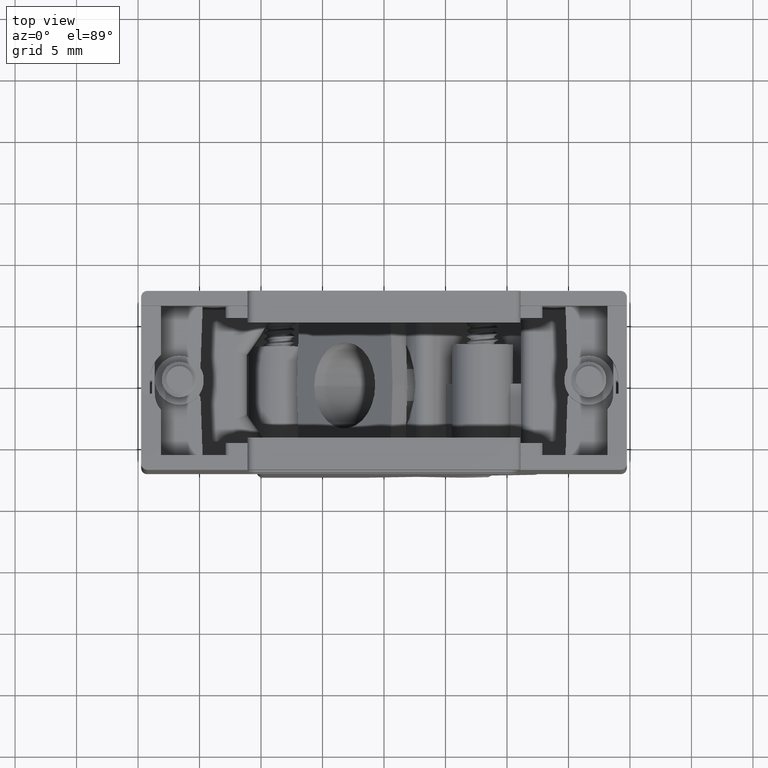
[diagram: clean part render]
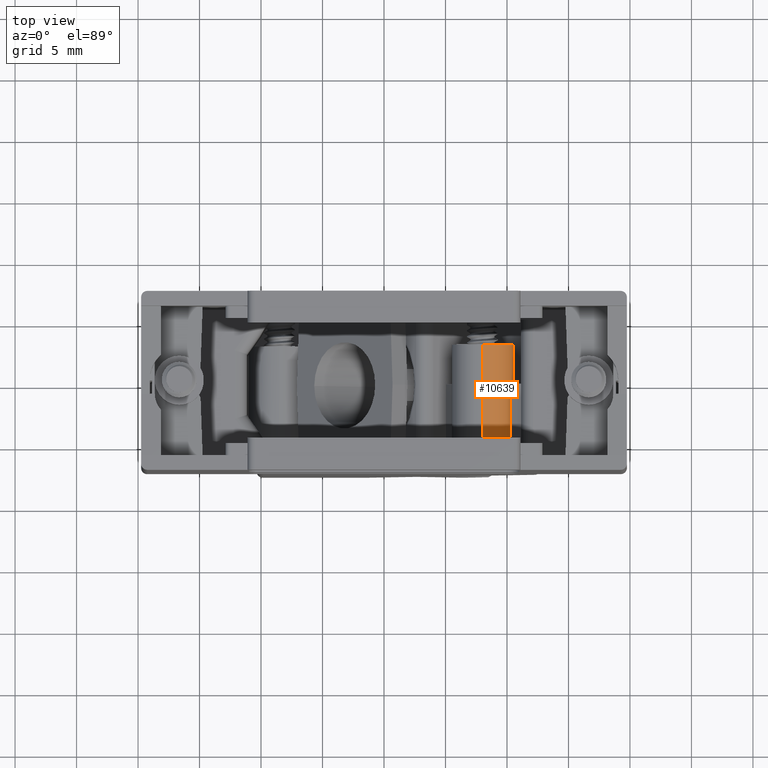
[diagram: same view with one face highlighted and labeled with its STEP entity id]
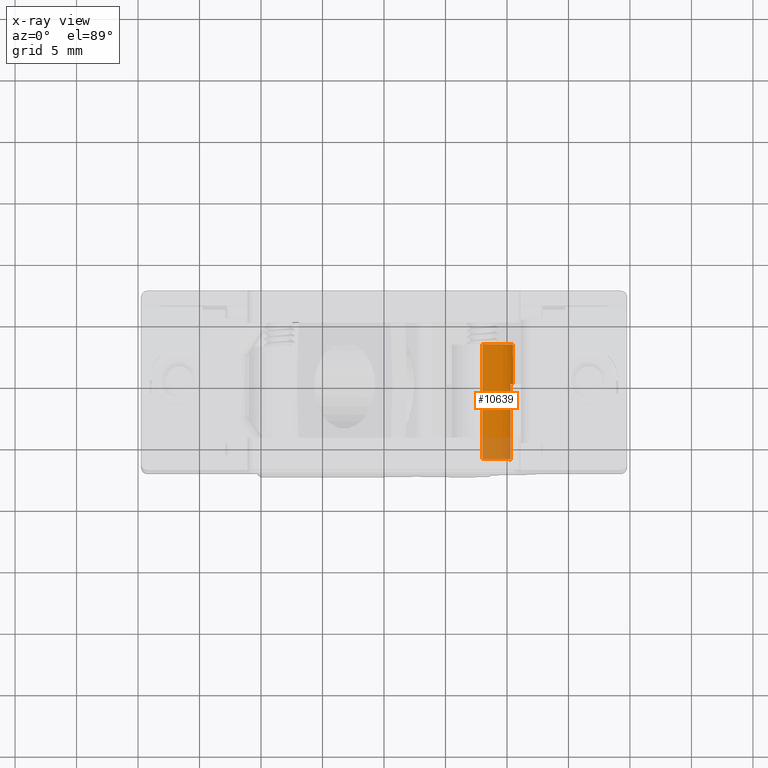
[diagram: x-ray of the same camera — body ghosted, the highlighted face saturated]
A machine part, top view. The second image highlights one B-rep face of the part: STEP entity #10639.
The next image is the same camera in x-ray: the body ghosted, the highlighted face saturated — about 18% of this face is hidden behind the body in this view.
In plain terms, the highlighted cylindrical surface (edge-blend (fillet) strip) has radius 2.5 mm, axis along (-0, -1, -0).
Its self-contained STEP definition (entity closure, byte-faithful):
#97 = EDGE_CURVE ( 'NONE', #19707, #5843, #2505, .T. ) ;
#221 = CARTESIAN_POINT ( 'NONE',  ( 7.999999999999996447, 3.199999999999999734, -19.00000000000000000 ) ) ;
#321 = DIRECTION ( 'NONE',  ( -0.000000000000000000, -1.000000000000000000, -0.000000000000000000 ) ) ;
#1100 = LINE ( 'NONE', #7984, #8263 ) ;
#1122 = CARTESIAN_POINT ( 'NONE',  ( 7.999999999999996447, 3.199999999999999734, -21.50000000000000000 ) ) ;
#1142 = CYLINDRICAL_SURFACE ( 'NONE', #3842, 2.499999999999998668 ) ;
#1364 = CARTESIAN_POINT ( 'NONE',  ( 7.999999999999996447, 3.199999999999999734, -21.50000000000000000 ) ) ;
#1367 = DIRECTION ( 'NONE',  ( 0.000000000000000000, 0.000000000000000000, 1.000000000000000000 ) ) ;
#1504 = EDGE_CURVE ( 'NONE', #4148, #5843, #1100, .T. ) ;
#2505 = CIRCLE ( 'NONE', #17239, 2.499999999999998668 ) ;
#3583 = AXIS2_PLACEMENT_3D ( 'NONE', #16577, #16903, #1367 ) ;
#3799 = CARTESIAN_POINT ( 'NONE',  ( 7.999999999999996447, 3.199999999999999734, -19.00000000000000000 ) ) ;
#3842 = AXIS2_PLACEMENT_3D ( 'NONE', #1364, #13423, #9949 ) ;
#4035 = CARTESIAN_POINT ( 'NONE',  ( 10.29128784747791414, 0.000000000000000000, -20.49999999999999645 ) ) ;
#4148 = VERTEX_POINT ( 'NONE', #19471 ) ;
#5159 = EDGE_CURVE ( 'NONE', #5832, #11421, #17972, .T. ) ;
#5588 = VECTOR ( 'NONE', #12731, 1000.000000000000000 ) ;
#5636 = LINE ( 'NONE', #221, #5588 ) ;
#5832 = VERTEX_POINT ( 'NONE', #15520 ) ;
#5843 = VERTEX_POINT ( 'NONE', #13943 ) ;
#6561 = FACE_OUTER_BOUND ( 'NONE', #12766, .T. ) ;
#6979 = CIRCLE ( 'NONE', #11320, 2.499999999999998668 ) ;
#7984 = CARTESIAN_POINT ( 'NONE',  ( 7.999999999999996447, 3.199999999999999734, -23.99999999999999645 ) ) ;
#8263 = VECTOR ( 'NONE', #14841, 1000.000000000000000 ) ;
#9770 = ORIENTED_EDGE ( 'NONE', *, *, #21389, .F. ) ;
#9949 = DIRECTION ( 'NONE',  ( 0.000000000000000000, 0.000000000000000000, -1.000000000000000000 ) ) ;
#10639 = ADVANCED_FACE ( 'NONE', ( #6561 ), #1142, .T. ) ;
#11320 = AXIS2_PLACEMENT_3D ( 'NONE', #1122, #21307, #12964 ) ;
#11421 = VERTEX_POINT ( 'NONE', #13429 ) ;
#12399 = VERTEX_POINT ( 'NONE', #3799 ) ;
#12731 = DIRECTION ( 'NONE',  ( -0.000000000000000000, -1.000000000000000000, -0.000000000000000000 ) ) ;
#12766 = EDGE_LOOP ( 'NONE', ( #21900, #19763, #13062, #9770, #18371, #15143 ) ) ;
#12964 = DIRECTION ( 'NONE',  ( 0.000000000000000000, 0.000000000000000000, 1.000000000000000000 ) ) ;
#13062 = ORIENTED_EDGE ( 'NONE', *, *, #5159, .T. ) ;
#13423 = DIRECTION ( 'NONE',  ( -0.000000000000000000, -1.000000000000000000, -0.000000000000000000 ) ) ;
#13429 = CARTESIAN_POINT ( 'NONE',  ( 10.29128784747791769, -6.149999999999999467, -20.49999999999999645 ) ) ;
#13943 = CARTESIAN_POINT ( 'NONE',  ( 7.999999999999996447, 0.000000000000000000, -23.99999999999999645 ) ) ;
#14841 = DIRECTION ( 'NONE',  ( -0.000000000000000000, -1.000000000000000000, -0.000000000000000000 ) ) ;
#14878 = VECTOR ( 'NONE', #321, 1000.000000000000000 ) ;
#15127 = DIRECTION ( 'NONE',  ( -0.000000000000000000, 1.000000000000000000, -0.000000000000000000 ) ) ;
#15143 = ORIENTED_EDGE ( 'NONE', *, *, #1504, .F. ) ;
#15213 = EDGE_CURVE ( 'NONE', #12399, #5832, #5636, .T. ) ;
#15520 = CARTESIAN_POINT ( 'NONE',  ( 7.999999999999996447, -6.149999999999999467, -19.00000000000000000 ) ) ;
#15754 = LINE ( 'NONE', #20720, #14878 ) ;
#16577 = CARTESIAN_POINT ( 'NONE',  ( 7.999999999999996447, -6.149999999999999467, -21.50000000000000000 ) ) ;
#16903 = DIRECTION ( 'NONE',  ( 0.000000000000000000, 1.000000000000000000, 0.000000000000000000 ) ) ;
#17239 = AXIS2_PLACEMENT_3D ( 'NONE', #18514, #15127, #20003 ) ;
#17972 = CIRCLE ( 'NONE', #3583, 2.499999999999998668 ) ;
#18371 = ORIENTED_EDGE ( 'NONE', *, *, #97, .T. ) ;
#18514 = CARTESIAN_POINT ( 'NONE',  ( 7.999999999999996447, 0.000000000000000000, -21.50000000000000000 ) ) ;
#19471 = CARTESIAN_POINT ( 'NONE',  ( 7.999999999999996447, 3.199999999999999734, -23.99999999999999645 ) ) ;
#19707 = VERTEX_POINT ( 'NONE', #4035 ) ;
#19763 = ORIENTED_EDGE ( 'NONE', *, *, #15213, .T. ) ;
#20003 = DIRECTION ( 'NONE',  ( 6.938893903907232322E-16, 0.000000000000000000, -1.000000000000000000 ) ) ;
#20720 = CARTESIAN_POINT ( 'NONE',  ( 10.29128784747791414, 8.162044648925059320, -20.49999999999999645 ) ) ;
#21110 = EDGE_CURVE ( 'NONE', #12399, #4148, #6979, .T. ) ;
#21307 = DIRECTION ( 'NONE',  ( 0.000000000000000000, 1.000000000000000000, 0.000000000000000000 ) ) ;
#21389 = EDGE_CURVE ( 'NONE', #19707, #11421, #15754, .T. ) ;
#21900 = ORIENTED_EDGE ( 'NONE', *, *, #21110, .F. ) ;